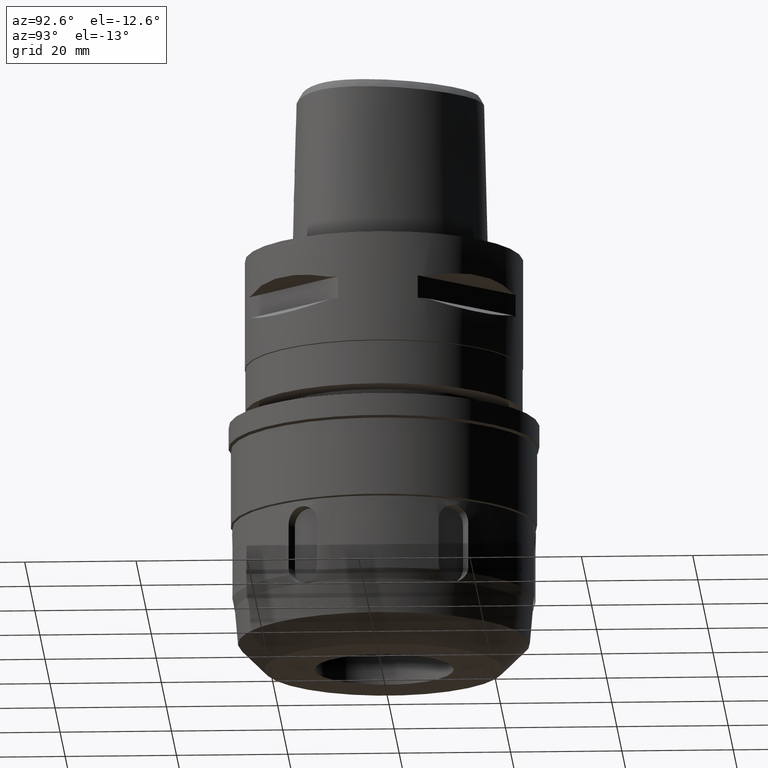
[diagram: clean part render]
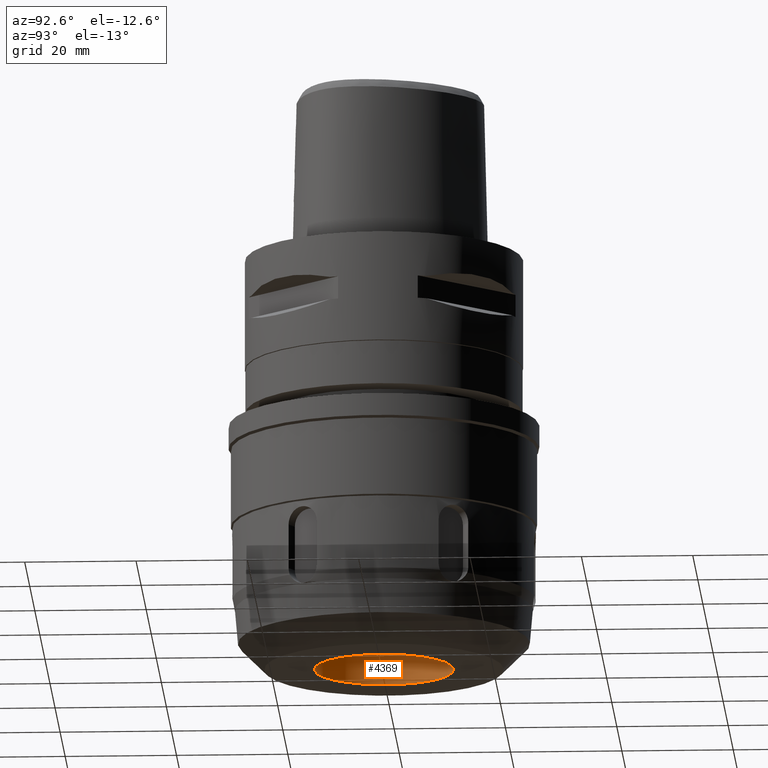
[diagram: same view with one face highlighted and labeled with its STEP entity id]
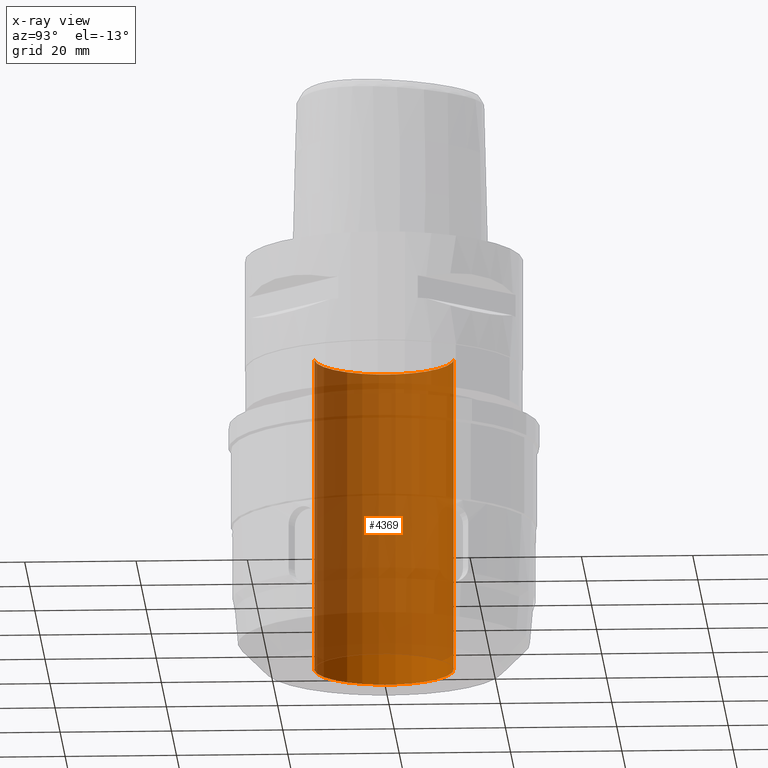
[diagram: x-ray of the same camera — body ghosted, the highlighted face saturated]
A machine part, auxiliary view. The second image highlights one B-rep face of the part: STEP entity #4369.
The next image is the same camera in x-ray: the body ghosted, the highlighted face saturated — about 92% of this face is hidden behind the body in this view.
In plain terms, the highlighted cylindrical surface (partial cylindrical patch) has radius 12.5 mm, axis along (0, 0, -1).
Its self-contained STEP definition (entity closure, byte-faithful):
#1562=CARTESIAN_POINT('',(0.E0,1.270571054115E-14,-7.5E1));
#1563=DIRECTION('',(0.E0,0.E0,-1.E0));
#1564=DIRECTION('',(0.E0,-1.E0,0.E0));
#1565=AXIS2_PLACEMENT_3D('',#1562,#1563,#1564);
#1578=DIRECTION('',(0.E0,0.E0,1.E0));
#1579=VECTOR('',#1578,5.7E1);
#1580=CARTESIAN_POINT('',(0.E0,-1.25E1,-7.5E1));
#1581=LINE('',#1580,#1579);
#1585=DIRECTION('',(0.E0,0.E0,1.E0));
#1586=VECTOR('',#1585,5.7E1);
#1587=CARTESIAN_POINT('',(0.E0,1.25E1,-7.5E1));
#1588=LINE('',#1587,#1586);
#1616=CARTESIAN_POINT('',(0.E0,1.270571054115E-14,-1.8E1));
#1617=DIRECTION('',(0.E0,0.E0,1.E0));
#1618=DIRECTION('',(0.E0,1.E0,0.E0));
#1619=AXIS2_PLACEMENT_3D('',#1616,#1617,#1618);
#2860=CARTESIAN_POINT('',(0.E0,-1.25E1,-7.5E1));
#2861=CARTESIAN_POINT('',(0.E0,1.25E1,-7.5E1));
#2862=VERTEX_POINT('',#2860);
#2863=VERTEX_POINT('',#2861);
#2864=CARTESIAN_POINT('',(0.E0,1.25E1,-1.8E1));
#2865=VERTEX_POINT('',#2864);
#2866=CARTESIAN_POINT('',(0.E0,-1.25E1,-1.8E1));
#2867=VERTEX_POINT('',#2866);
#4355=CARTESIAN_POINT('',(0.E0,1.270571054115E-14,3.75E0));
#4356=DIRECTION('',(0.E0,0.E0,-1.E0));
#4357=DIRECTION('',(0.E0,-1.E0,0.E0));
#4358=AXIS2_PLACEMENT_3D('',#4355,#4356,#4357);
#4359=CYLINDRICAL_SURFACE('',#4358,1.25E1);
#4361=ORIENTED_EDGE('',*,*,#4360,.F.);
#4362=ORIENTED_EDGE('',*,*,#4348,.F.);
#4364=ORIENTED_EDGE('',*,*,#4363,.T.);
#4366=ORIENTED_EDGE('',*,*,#4365,.F.);
#4367=EDGE_LOOP('',(#4361,#4362,#4364,#4366));
#4368=FACE_OUTER_BOUND('',#4367,.F.);
#1566=CIRCLE('',#1565,1.25E1);
#1620=CIRCLE('',#1619,1.25E1);
#4348=EDGE_CURVE('',#2862,#2863,#1566,.T.);
#4360=EDGE_CURVE('',#2863,#2865,#1588,.T.);
#4363=EDGE_CURVE('',#2862,#2867,#1581,.T.);
#4365=EDGE_CURVE('',#2865,#2867,#1620,.T.);
#4369=ADVANCED_FACE('',(#4368),#4359,.F.);